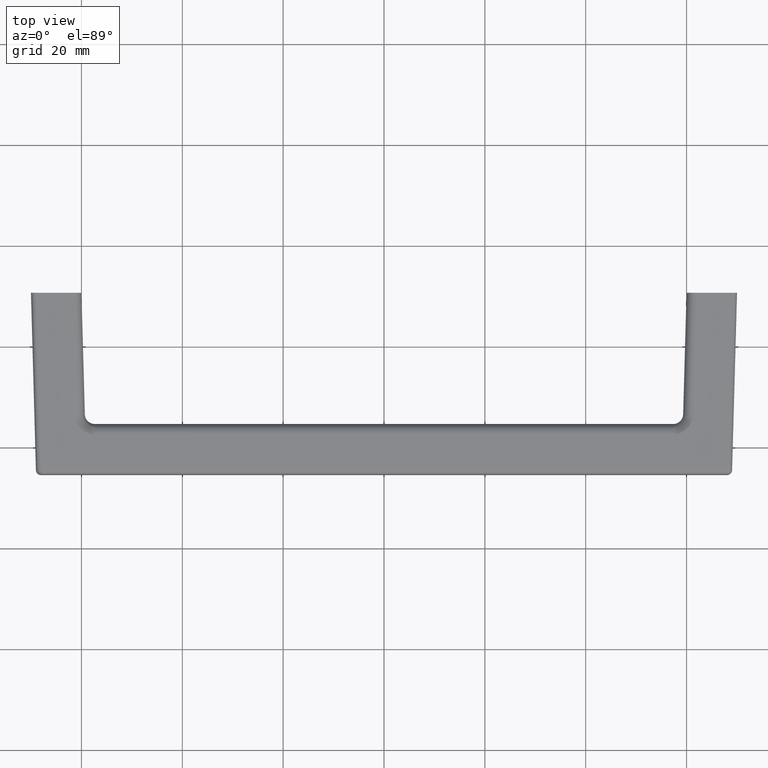
[diagram: clean part render]
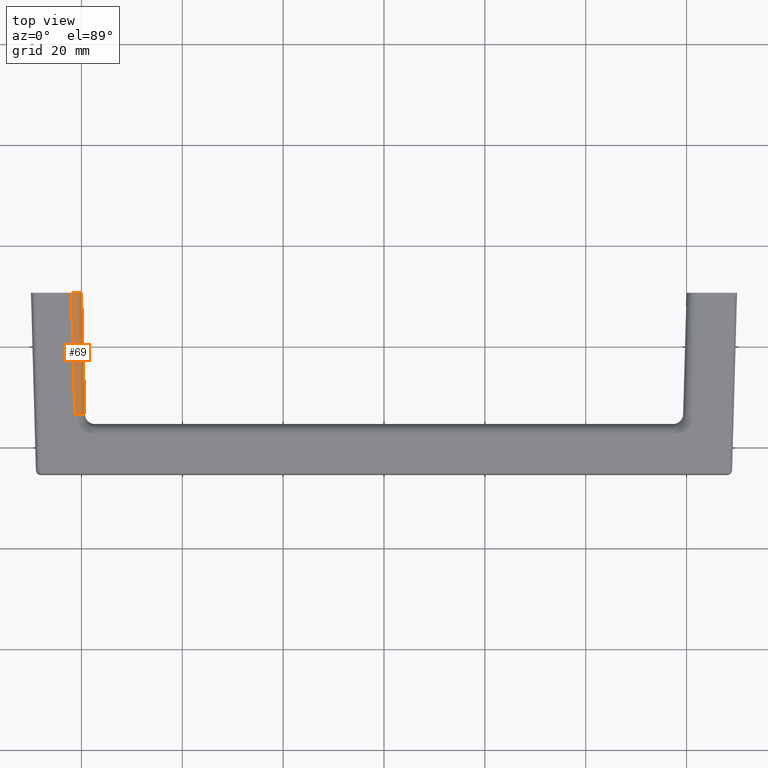
[diagram: same view with one face highlighted and labeled with its STEP entity id]
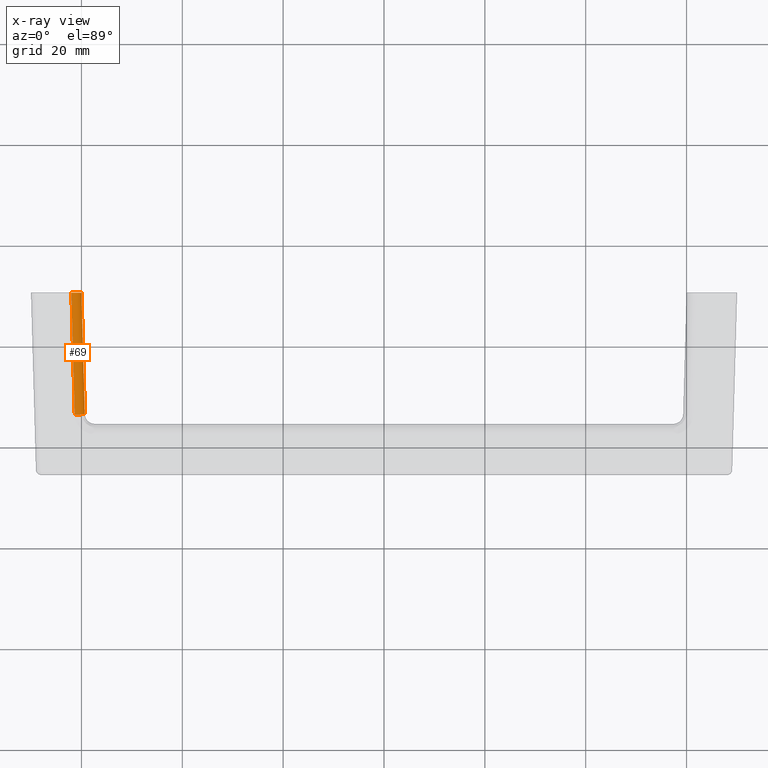
[diagram: x-ray of the same camera — body ghosted, the highlighted face saturated]
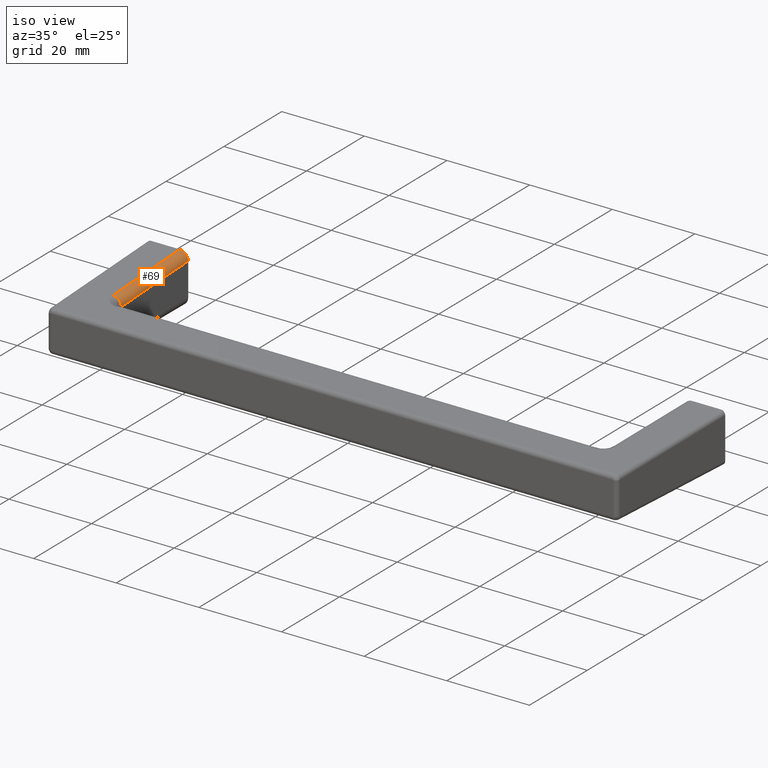
[diagram: same view with one face highlighted and labeled with its STEP entity id]
A machine part, top view. The second image highlights one B-rep face of the part: STEP entity #69.
The next image is the same camera in x-ray: the body ghosted, the highlighted face saturated — about 0% of this face is hidden behind the body in this view.
A second angle (iso view) of the same face is appended — the face is thin or edge-on in the first view.
In plain terms, the highlighted cylindrical surface (edge-blend (fillet) strip) has radius 2 mm, axis along (0.0278, -0.9992, -0.0278).
Its self-contained STEP definition (entity closure, byte-faithful):
#69=ADVANCED_FACE('',(#376),#375,.T.);
#375=CYLINDRICAL_SURFACE('',#840,2.00000000000E+000);
#376=FACE_OUTER_BOUND('',#841,.T.);
#837=CARTESIAN_POINT('',(-6.13138388248E+001,-1.41786152413E+001,1.33419722411E+001));
#838=DIRECTION('',(2.77555156985E-002,-9.99229310663E-001,-2.77563697406E-002));
#839=DIRECTION('',(4.28326139012E-002,2.89304056113E-002,-9.98663306033E-001));
#840=AXIS2_PLACEMENT_3D('',#837,#838,#839);
#841=EDGE_LOOP('',(#1105,#1106,#1107,#1108));
#1105=ORIENTED_EDGE('',*,*,#1344,.F.);
#1106=ORIENTED_EDGE('',*,*,#1345,.F.);
#1107=ORIENTED_EDGE('',*,*,#1337,.F.);
#1108=ORIENTED_EDGE('',*,*,#1286,.F.);
#1286=EDGE_CURVE('',#1617,#1625,#1626,.T.);
#1337=EDGE_CURVE('',#1625,#1960,#1961,.T.);
#1344=EDGE_CURVE('',#2004,#1617,#2005,.T.);
#1345=EDGE_CURVE('',#1960,#2004,#2011,.T.);
#1617=VERTEX_POINT('',#2544);
#1625=VERTEX_POINT('',#2549);
#1626=LINE('',#2550,#2551);
#1960=VERTEX_POINT('',#2835);
#1961=(BOUNDED_CURVE() B_SPLINE_CURVE(3,(#2836,#2837,#2838,#2839,#2840,#2841,#2842,#2843),.UNSPECIFIED.,.F.,.F.) B_SPLINE_CURVE_WITH_KNOTS((4,1,1,1,1,4),(3.32906792000E-007,7.36689466121E-001,1.22783132064E+000,1.62067147038E+000,2.30829461034E+000,3.14321357762E+000),.UNSPECIFIED.) CURVE() GEOMETRIC_REPRESENTATION_ITEM() RATIONAL_B_SPLINE_CURVE((1.00000000000E+000,1.00000000000E+000,1.00000000000E+000,1.00000000000E+000,1.00000000000E+000,1.00000000000E+000,1.00000000000E+000,1.00000000000E+000)) REPRESENTATION_ITEM('') );
#2004=VERTEX_POINT('',#2885);
#2005=(BOUNDED_CURVE() B_SPLINE_CURVE(3,(#2886,#2887,#2888,#2889,#2890,#2891,#2892),.UNSPECIFIED.,.F.,.F.) B_SPLINE_CURVE_WITH_KNOTS((4,1,1,1,4),(3.32215426000E-007,9.33724239284E-001,1.62167982230E+000,2.21144497463E+000,3.14516910601E+000),.UNSPECIFIED.) CURVE() GEOMETRIC_REPRESENTATION_ITEM() RATIONAL_B_SPLINE_CURVE((1.00000000000E+000,1.00000000000E+000,1.00000000000E+000,1.00000000000E+000,1.00000000000E+000,1.00000000000E+000,1.00000000000E+000)) REPRESENTATION_ITEM('') );
#2011=LINE('',#2893,#2894);
#2544=CARTESIAN_POINT('',(-6.00000000000E+001,1.05517187119E+001,1.40273833946E+001));
#2549=CARTESIAN_POINT('',(-5.93318113262E+001,-1.35038137152E+001,1.33591741606E+001));
#2550=CARTESIAN_POINT('',(-6.00000000000E+001,1.05517187119E+001,1.40273833946E+001));
#2551=VECTOR('',#2552,2.40740860685E+001);
#2552=DIRECTION('',(2.77555156985E-002,-9.99229310663E-001,-2.77563697406E-002));
#2835=CARTESIAN_POINT('',(-6.13310402149E+001,-1.36148802767E+001,1.53584030019E+001));
#2836=CARTESIAN_POINT('',(-5.93318113262E+001,-1.35038137152E+001,1.33591741606E+001));
#2837=CARTESIAN_POINT('',(-5.93314083242E+001,-1.35106217768E+001,1.36046673679E+001));
#2838=CARTESIAN_POINT('',(-5.94076359329E+001,-1.35240988925E+001,1.40136182679E+001));
#2839=CARTESIAN_POINT('',(-5.96639343892E+001,-1.35445442596E+001,1.44933609156E+001));
#2840=CARTESIAN_POINT('',(-6.00073678634E+001,-1.35651507307E+001,1.48917709662E+001));
#2841=CARTESIAN_POINT('',(-6.05457823104E+001,-1.35900956435E+001,1.52513899488E+001));
#2842=CARTESIAN_POINT('',(-6.10527868629E+001,-1.36071667813E+001,1.53589619567E+001));
#2843=CARTESIAN_POINT('',(-6.13310402149E+001,-1.36148802767E+001,1.53584030019E+001));
#2885=CARTESIAN_POINT('',(-6.20023139761E+001,1.05517187119E+001,1.60296974182E+001));
#2886=CARTESIAN_POINT('',(-6.20023139761E+001,1.05517187119E+001,1.60296974182E+001));
#2887=CARTESIAN_POINT('',(-6.16909923264E+001,1.05517187119E+001,1.60301622200E+001));
#2888=CARTESIAN_POINT('',(-6.11509645237E+001,1.05517187119E+001,1.59009580928E+001));
#2889=CARTESIAN_POINT('',(-6.05501796963E+001,1.05517187119E+001,1.54551924716E+001));
#2890=CARTESIAN_POINT('',(-6.01209939451E+001,1.05517187119E+001,1.48459602788E+001));
#2891=CARTESIAN_POINT('',(-5.99995263318E+001,1.05517187119E+001,1.43387274684E+001));
#2892=CARTESIAN_POINT('',(-6.00000000000E+001,1.05517187119E+001,1.40273833946E+001));
#2893=CARTESIAN_POINT('',(-6.13310402149E+001,-1.36148802767E+001,1.53584030019E+001));
#2894=VECTOR('',#2895,2.41852382939E+001);
#2895=DIRECTION('',(-2.77555156985E-002,9.99229310663E-001,2.77563697406E-002));